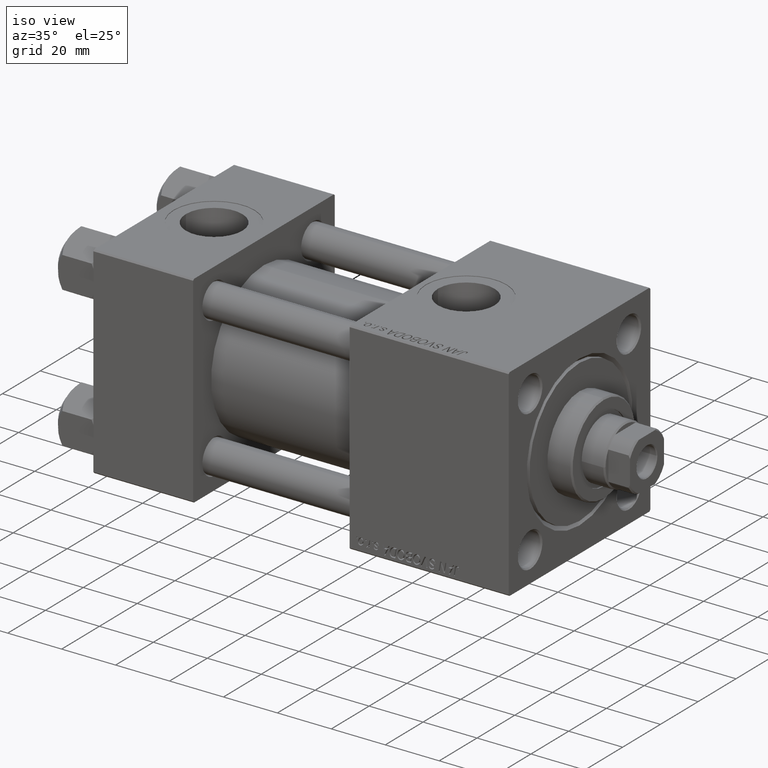
[diagram: clean part render]
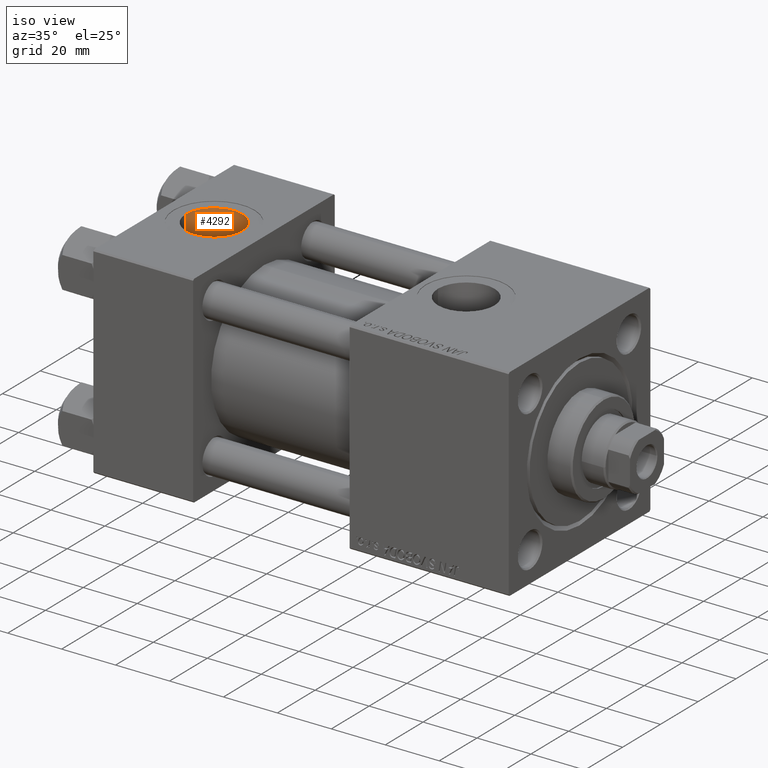
[diagram: same view with one face highlighted and labeled with its STEP entity id]
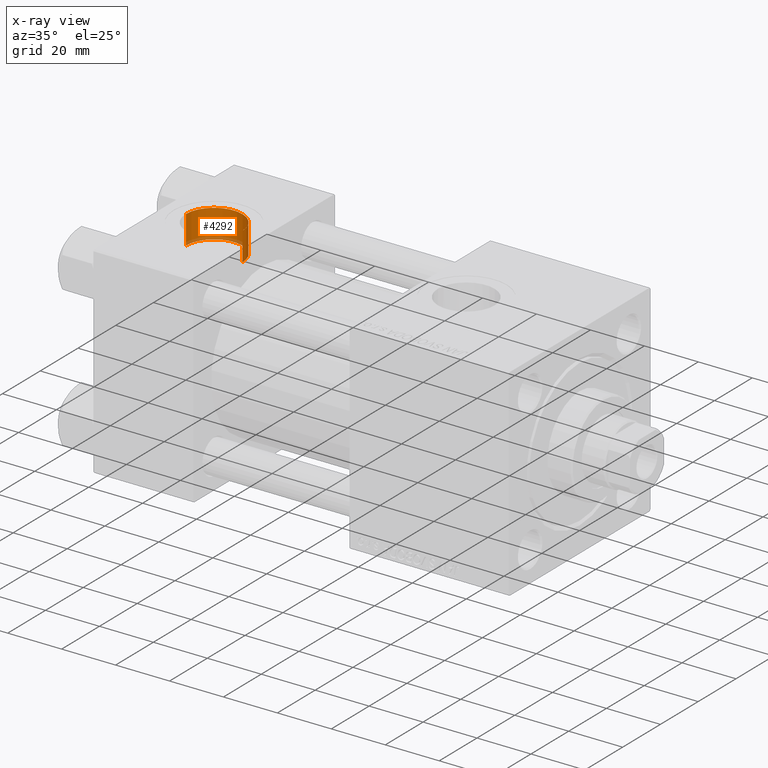
[diagram: x-ray of the same camera — body ghosted, the highlighted face saturated]
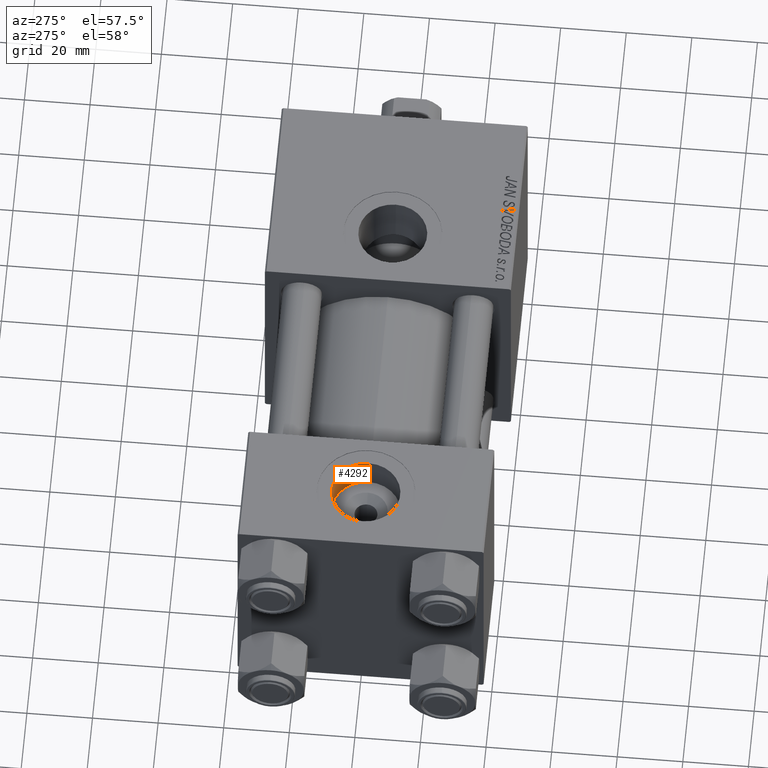
[diagram: same view with one face highlighted and labeled with its STEP entity id]
A machine part, iso view. The second image highlights one B-rep face of the part: STEP entity #4292.
The next image is the same camera in x-ray: the body ghosted, the highlighted face saturated — about 9% of this face is hidden behind the body in this view.
A second angle (auxiliary view) of the same face is appended — the face is thin or edge-on in the first view.
In plain terms, the highlighted cylindrical surface (edge-blend (fillet) strip) has radius 10.48 mm, axis along (0, 0, 1).
Its self-contained STEP definition (entity closure, byte-faithful):
#725 = EDGE_CURVE ( 'NONE', #24940, #30056, #45176, .T. ) ;
#763 = ORIENTED_EDGE ( 'NONE', *, *, #4551, .T. ) ;
#1058 = DIRECTION ( 'NONE',  ( -0.000000000000000000, -0.000000000000000000, 1.000000000000000000 ) ) ;
#1251 = CARTESIAN_POINT ( 'NONE',  ( 28.98000000000000043, -5.204170427930421283E-15, 37.29999999999999716 ) ) ;
#4292 = ADVANCED_FACE ( 'NONE', ( #21405 ), #14293, .F. ) ;
#4551 = EDGE_CURVE ( 'NONE', #24940, #36245, #39136, .T. ) ;
#5553 = VECTOR ( 'NONE', #1058, 1000.000000000000000 ) ;
#5812 = DIRECTION ( 'NONE',  ( 1.000000000000000000, 0.000000000000000000, 0.000000000000000000 ) ) ;
#5877 = CARTESIAN_POINT ( 'NONE',  ( 8.019999999999999574, -3.920740582423995006E-15, 37.29999999999999716 ) ) ;
#7711 = DIRECTION ( 'NONE',  ( 0.000000000000000000, 0.000000000000000000, 1.000000000000000000 ) ) ;
#10230 = DIRECTION ( 'NONE',  ( 1.000000000000000000, 0.000000000000000000, 0.000000000000000000 ) ) ;
#10607 = VERTEX_POINT ( 'NONE', #5877 ) ;
#11529 = CARTESIAN_POINT ( 'NONE',  ( 18.50000000000000000, -5.204170427930421283E-15, 37.29999999999999716 ) ) ;
#13674 = AXIS2_PLACEMENT_3D ( 'NONE', #21652, #21152, #10230 ) ;
#14229 = DIRECTION ( 'NONE',  ( -0.000000000000000000, -0.000000000000000000, 1.000000000000000000 ) ) ;
#14293 = CYLINDRICAL_SURFACE ( 'NONE', #13674, 10.48000000000000043 ) ;
#15453 = ORIENTED_EDGE ( 'NONE', *, *, #17997, .F. ) ;
#16065 = VECTOR ( 'NONE', #14229, 1000.000000000000000 ) ;
#16283 = CARTESIAN_POINT ( 'NONE',  ( 28.98000000000000043, -5.204170427930421283E-15, 26.69999999999999929 ) ) ;
#17997 = EDGE_CURVE ( 'NONE', #30056, #10607, #29714, .T. ) ;
#21152 = DIRECTION ( 'NONE',  ( -0.000000000000000000, -0.000000000000000000, 1.000000000000000000 ) ) ;
#21405 = FACE_OUTER_BOUND ( 'NONE', #25522, .T. ) ;
#21652 = CARTESIAN_POINT ( 'NONE',  ( 18.50000000000000000, -5.204170427930421283E-15, 26.69999999999999929 ) ) ;
#22523 = CARTESIAN_POINT ( 'NONE',  ( 8.019999999999999574, -3.920740582423995006E-15, 26.69999999999999929 ) ) ;
#24940 = VERTEX_POINT ( 'NONE', #46614 ) ;
#25522 = EDGE_LOOP ( 'NONE', ( #15453, #40870, #763, #31078 ) ) ;
#26835 = CARTESIAN_POINT ( 'NONE',  ( 8.019999999999999574, -3.920740582423995006E-15, 26.69999999999999929 ) ) ;
#28618 = AXIS2_PLACEMENT_3D ( 'NONE', #11529, #7711, #38435 ) ;
#29714 = LINE ( 'NONE', #26835, #16065 ) ;
#30056 = VERTEX_POINT ( 'NONE', #22523 ) ;
#31078 = ORIENTED_EDGE ( 'NONE', *, *, #47792, .T. ) ;
#36245 = VERTEX_POINT ( 'NONE', #1251 ) ;
#37096 = AXIS2_PLACEMENT_3D ( 'NONE', #48202, #40589, #5812 ) ;
#38435 = DIRECTION ( 'NONE',  ( 1.000000000000000000, 0.000000000000000000, 0.000000000000000000 ) ) ;
#39136 = LINE ( 'NONE', #16283, #5553 ) ;
#40589 = DIRECTION ( 'NONE',  ( 0.000000000000000000, 0.000000000000000000, 1.000000000000000000 ) ) ;
#40870 = ORIENTED_EDGE ( 'NONE', *, *, #725, .F. ) ;
#45176 = CIRCLE ( 'NONE', #37096, 10.48000000000000043 ) ;
#46614 = CARTESIAN_POINT ( 'NONE',  ( 28.98000000000000043, -5.204170427930421283E-15, 26.69999999999999929 ) ) ;
#47792 = EDGE_CURVE ( 'NONE', #36245, #10607, #49691, .T. ) ;
#48202 = CARTESIAN_POINT ( 'NONE',  ( 18.50000000000000000, -5.204170427930421283E-15, 26.69999999999999929 ) ) ;
#49691 = CIRCLE ( 'NONE', #28618, 10.48000000000000043 ) ;